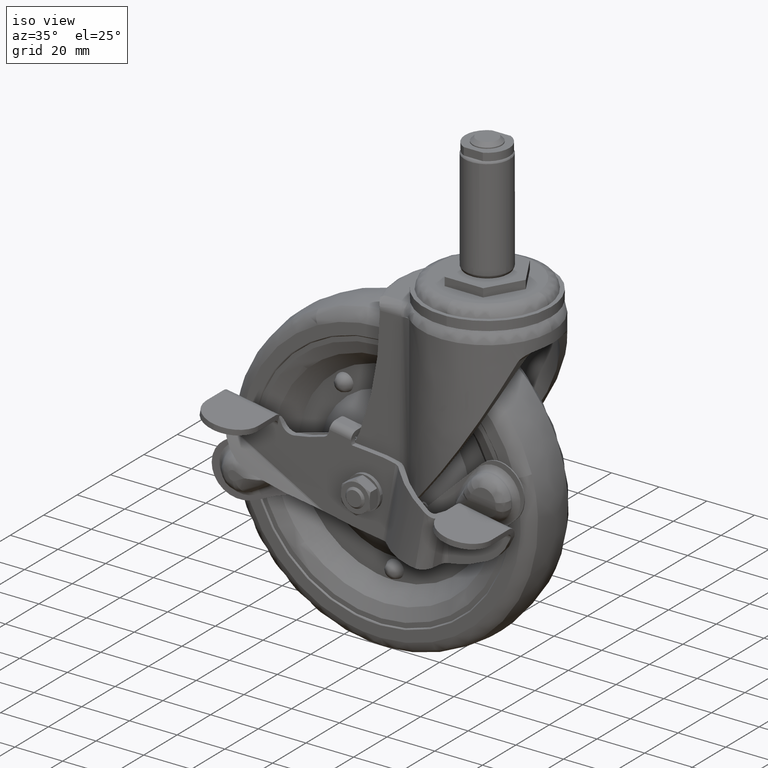
[diagram: clean part render]
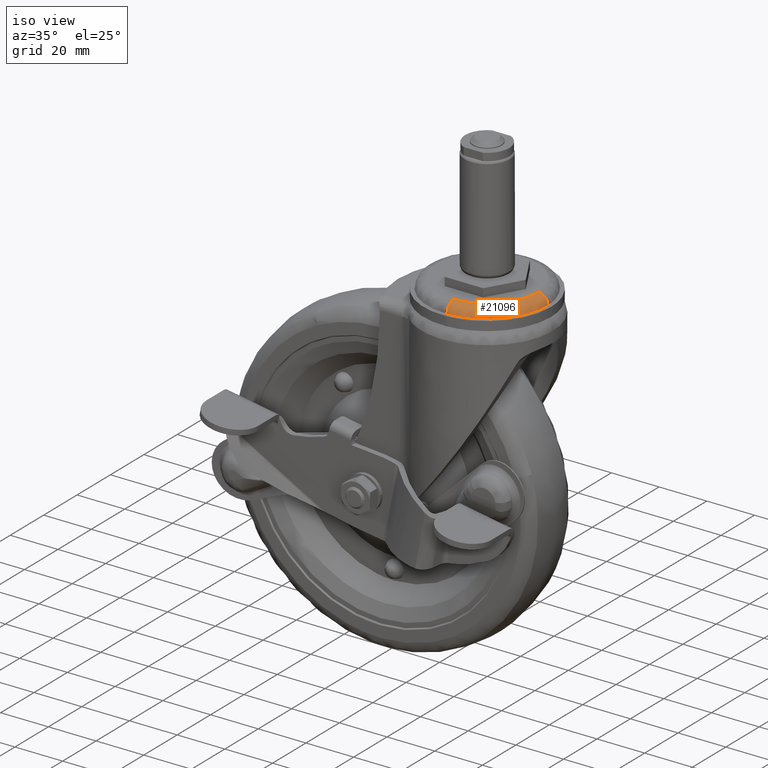
[diagram: same view with one face highlighted and labeled with its STEP entity id]
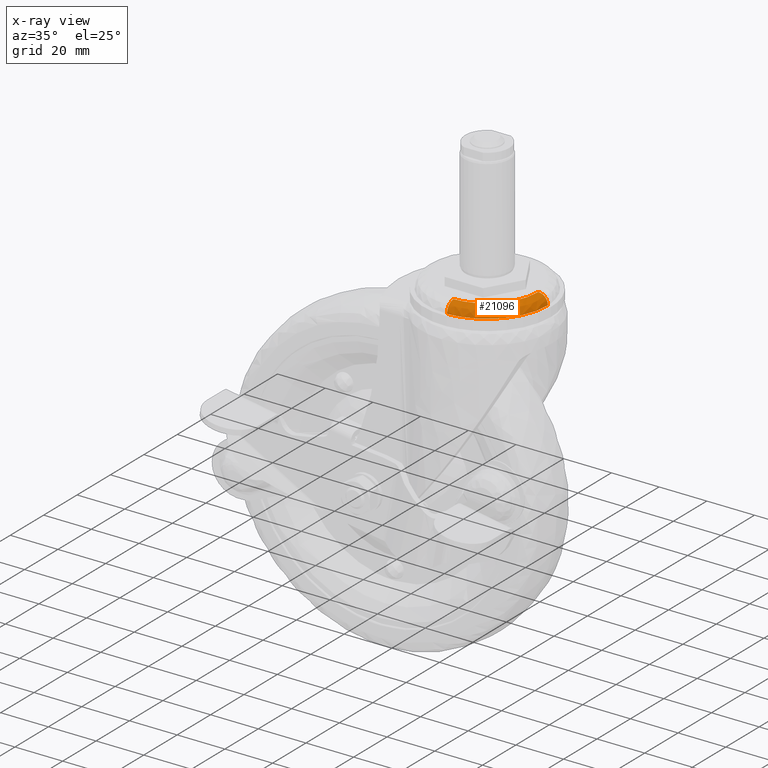
[diagram: x-ray of the same camera — body ghosted, the highlighted face saturated]
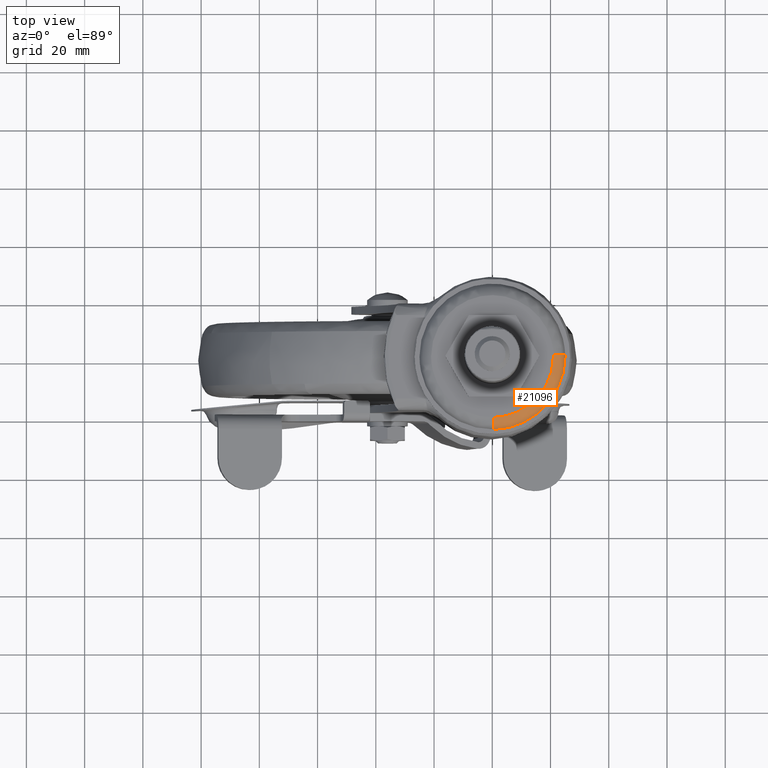
[diagram: same view with one face highlighted and labeled with its STEP entity id]
A machine part, iso view. The second image highlights one B-rep face of the part: STEP entity #21096.
The next image is the same camera in x-ray: the body ghosted, the highlighted face saturated — about 0% of this face is hidden behind the body in this view.
A second angle (top view) of the same face is appended — the face is thin or edge-on in the first view.
In plain terms, the highlighted face is a freeform B-spline surface patch.
Its self-contained STEP definition (entity closure, byte-faithful):
#20918=CARTESIAN_POINT('',(0.527732005274940,-20.993367982204379,-2.499783000000094));
#20919=VERTEX_POINT('',#20918);
#20937=CARTESIAN_POINT('',(20.993367982619450,0.527732005338805,-2.499783000000094));
#20938=VERTEX_POINT('',#20937);
#20954=CARTESIAN_POINT('',(24.992104732076921,0.628252386300305,-6.499782302629562));
#20955=VERTEX_POINT('',#20954);
#20956=CARTESIAN_POINT('',(20.993367982619457,0.527732005338805,-2.499783000000095));
#20957=CARTESIAN_POINT('',(24.992103337782151,0.628252351033474,-2.499783015387259));
#20958=CARTESIAN_POINT('',(24.992104732076918,0.628252386300305,-6.499782302629562));
#20966=(BOUNDED_CURVE()B_SPLINE_CURVE(2,(#20956,#20957,#20958),.UNSPECIFIED.,.F.,.U.)B_SPLINE_CURVE_WITH_KNOTS((3,3),(-1.723441278024150,-0.263587239804163),.UNSPECIFIED.)CURVE()GEOMETRIC_REPRESENTATION_ITEM()RATIONAL_B_SPLINE_CURVE((0.883897565742766,0.626638791542446,0.888510279593106))REPRESENTATION_ITEM(''));
#20967=EDGE_CURVE('',#20938,#20955,#20966,.T.);
#20986=CARTESIAN_POINT('',(0.628252386297336,-24.992104732076999,-6.499782302629559));
#20987=VERTEX_POINT('',#20986);
#21003=CARTESIAN_POINT('',(0.527732005274940,-20.993367982204379,-2.499783000000095));
#21004=CARTESIAN_POINT('',(0.628252351033476,-24.992103337782151,-2.499783014554168));
#21005=CARTESIAN_POINT('',(0.628252386297336,-24.992104732076992,-6.499782302629559));
#21013=(BOUNDED_CURVE()B_SPLINE_CURVE(2,(#21003,#21004,#21005),.UNSPECIFIED.,.F.,.U.)B_SPLINE_CURVE_WITH_KNOTS((3,3),(-1.723441278238585,-0.263587239804163),.UNSPECIFIED.)CURVE()GEOMETRIC_REPRESENTATION_ITEM()RATIONAL_B_SPLINE_CURVE((0.883897565818343,0.626638791503980,0.888510279593106))REPRESENTATION_ITEM(''));
#21014=EDGE_CURVE('',#20919,#20987,#21013,.T.);
#21019=CARTESIAN_POINT('',(20.714558374233214,0.520723279003016,-2.509517835337709));
#21020=CARTESIAN_POINT('',(21.235281653236225,-20.193835095230192,-2.509517835337709));
#21021=CARTESIAN_POINT('',(0.520723279003018,-20.714558374233214,-2.509517835337709));
#21022=CARTESIAN_POINT('',(25.301349891967678,0.636026201520973,-2.188824952701496));
#21023=CARTESIAN_POINT('',(25.937376093488652,-24.665323690446677,-2.188824952701495));
#21024=CARTESIAN_POINT('',(0.636026201520975,-25.301349891967678,-2.188824952701496));
#21025=CARTESIAN_POINT('',(24.982477172632954,0.628010368163738,-6.777185340830907));
#21026=CARTESIAN_POINT('',(25.610487540796694,-24.354466804469212,-6.777185340830905));
#21027=CARTESIAN_POINT('',(0.628010368163739,-24.982477172632954,-6.777185340830907));
#21035=(BOUNDED_SURFACE()B_SPLINE_SURFACE(2,2,((#21019,#21022,#21025),(#21020,#21023,#21026),(#21021,#21024,#21027)),.UNSPECIFIED.,.F.,.F.,.U.)B_SPLINE_SURFACE_WITH_KNOTS((3,3),(3,3),(0.0,41.405399735288952),(0.0,7.289482494895393),.UNSPECIFIED.)GEOMETRIC_REPRESENTATION_ITEM()RATIONAL_B_SPLINE_SURFACE(((0.910893038506256,0.599412882444686,0.915966626020206),(0.644098644463392,0.423848913907212,0.647686212599450),(0.910893038506256,0.599412882444686,0.915966626020206)))REPRESENTATION_ITEM('')SURFACE());
#21036=CARTESIAN_POINT('',(21.0,0.0,-2.499783000000095));
#21037=VERTEX_POINT('',#21036);
#21038=CARTESIAN_POINT('',(21.0,0.0,-2.499783000000095));
#21039=CARTESIAN_POINT('',(21.000000000000004,-20.478735398267641,-2.499783000000095));
#21040=CARTESIAN_POINT('',(0.527732005274940,-20.993367982204376,-2.499783000000095));
#21048=(BOUNDED_CURVE()B_SPLINE_CURVE(2,(#21038,#21039,#21040),.UNSPECIFIED.,.F.,.U.)B_SPLINE_CURVE_WITH_KNOTS((3,3),(0.500000000000000,0.745579891756773),.UNSPECIFIED.)CURVE()GEOMETRIC_REPRESENTATION_ITEM()RATIONAL_B_SPLINE_CURVE((1.0,0.712285260109998,0.989826157652114))REPRESENTATION_ITEM(''));
#21049=EDGE_CURVE('',#21037,#20919,#21048,.T.);
#21050=ORIENTED_EDGE('',*,*,#21049,.T.);
#21051=ORIENTED_EDGE('',*,*,#21014,.T.);
#21052=CARTESIAN_POINT('',(25.0,0.0,-6.499783000000091));
#21053=VERTEX_POINT('',#21052);
#21054=CARTESIAN_POINT('',(25.0,0.0,-6.499783000000091));
#21055=CARTESIAN_POINT('',(24.999999999999996,-24.379446904098685,-6.499783000000091));
#21056=CARTESIAN_POINT('',(0.628252386297336,-24.992104732076999,-6.499782302629559));
#21064=(BOUNDED_CURVE()B_SPLINE_CURVE(2,(#21054,#21055,#21056),.UNSPECIFIED.,.F.,.U.)B_SPLINE_CURVE_WITH_KNOTS((3,3),(0.500000000000000,0.745579891766812),.UNSPECIFIED.)CURVE()GEOMETRIC_REPRESENTATION_ITEM()RATIONAL_B_SPLINE_CURVE((1.0,0.712285260098237,0.989826157674805))REPRESENTATION_ITEM(''));
#21065=EDGE_CURVE('',#21053,#20987,#21064,.T.);
#21066=ORIENTED_EDGE('',*,*,#21065,.F.);
#21067=CARTESIAN_POINT('',(24.992104732076921,0.628252386300305,-6.499782302629563));
#21068=CARTESIAN_POINT('',(24.999999999999996,0.314175803301460,-6.499783000000091));
#21069=CARTESIAN_POINT('',(25.0,0.0,-6.499783000000091));
#21077=(BOUNDED_CURVE()B_SPLINE_CURVE(2,(#21067,#21068,#21069),.UNSPECIFIED.,.F.,.U.)B_SPLINE_CURVE_WITH_KNOTS((3,3),(0.495579891766771,0.500000000000000),.UNSPECIFIED.)CURVE()GEOMETRIC_REPRESENTATION_ITEM()RATIONAL_B_SPLINE_CURVE((0.989826157674712,0.994821521088263,1.0))REPRESENTATION_ITEM(''));
#21078=EDGE_CURVE('',#20955,#21053,#21077,.T.);
#21079=ORIENTED_EDGE('',*,*,#21078,.F.);
#21080=ORIENTED_EDGE('',*,*,#20967,.F.);
#21081=CARTESIAN_POINT('',(20.993367982619450,0.527732005338805,-2.499783000000094));
#21082=CARTESIAN_POINT('',(21.0,0.263907675426742,-2.499783000000095));
#21083=CARTESIAN_POINT('',(21.0,0.0,-2.499783000000095));
#21091=(BOUNDED_CURVE()B_SPLINE_CURVE(2,(#21081,#21082,#21083),.UNSPECIFIED.,.F.,.U.)B_SPLINE_CURVE_WITH_KNOTS((3,3),(0.495579891755882,0.500000000000000),.UNSPECIFIED.)CURVE()GEOMETRIC_REPRESENTATION_ITEM()RATIONAL_B_SPLINE_CURVE((0.989826157650100,0.994821521075506,1.0))REPRESENTATION_ITEM(''));
#21092=EDGE_CURVE('',#20938,#21037,#21091,.T.);
#21093=ORIENTED_EDGE('',*,*,#21092,.T.);
#21094=EDGE_LOOP('',(#21050,#21051,#21066,#21079,#21080,#21093));
#21095=FACE_OUTER_BOUND('',#21094,.T.);
#21096=ADVANCED_FACE('',(#21095),#21035,.T.);